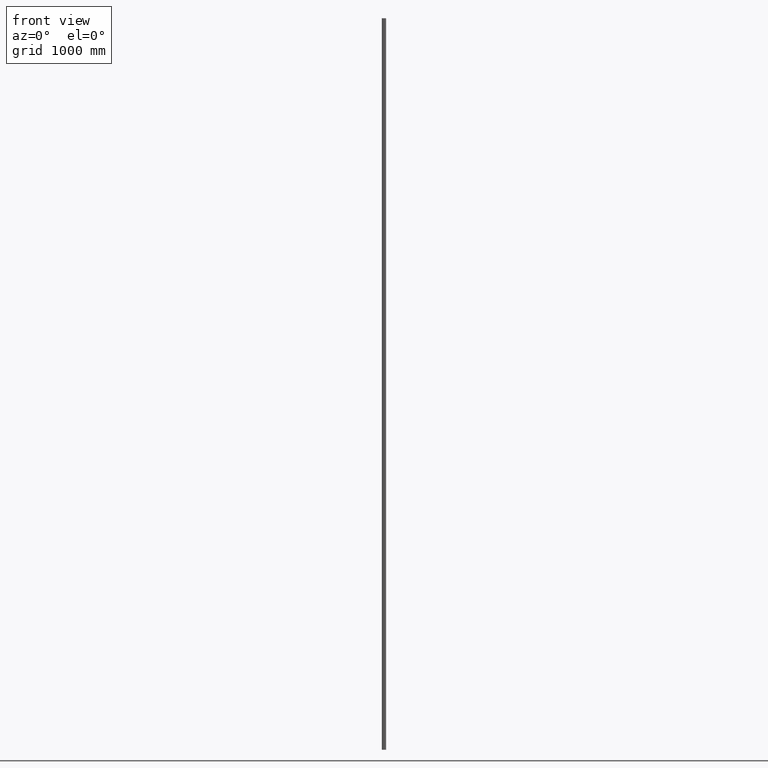
[diagram: clean part render]
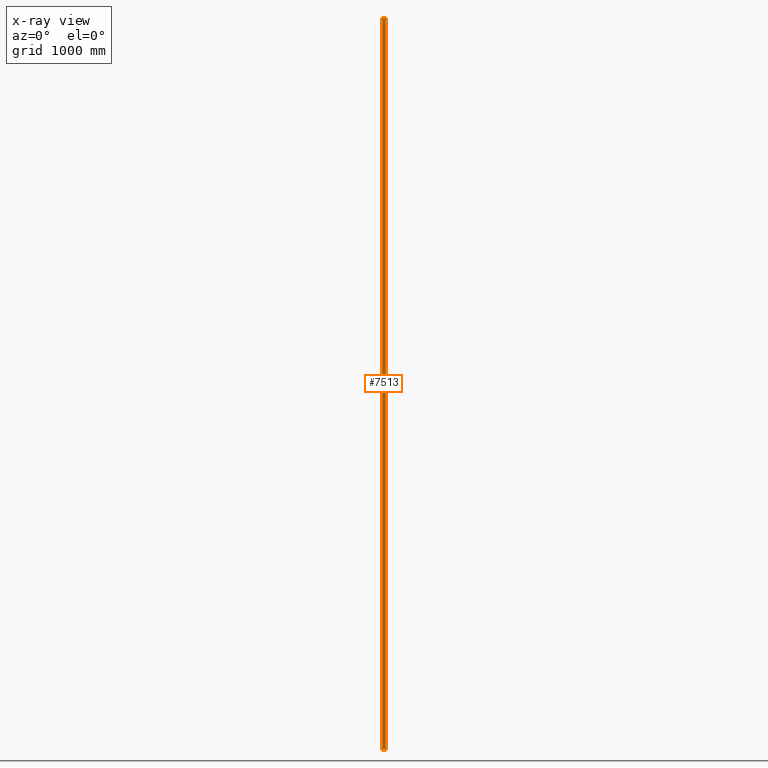
[diagram: x-ray — body ghosted, one internal face saturated and labeled with its STEP entity id]
A machine part, front view, then the same camera in x-ray: the body is ghosted and one INTERNAL B-rep face — a face not visible from any outside direction — is saturated and labeled: STEP entity #7513.
In plain terms, the highlighted planar face has unit normal (0, -1, 0).
Its self-contained STEP definition (entity closure, byte-faithful):
#134 = CARTESIAN_POINT ( 'NONE',  ( -1.790112549618517661E-18, 2.541098841762901017E-18, 3000.000000000000000 ) ) ;
#153 = ORIENTED_EDGE ( 'NONE', *, *, #13395, .F. ) ;
#647 = CARTESIAN_POINT ( 'NONE',  ( -13.50000000000000000, -1.650867214198631361E-15, 3000.000000000000000 ) ) ;
#1183 = DIRECTION ( 'NONE',  ( 0.000000000000000000, 0.000000000000000000, -1.000000000000000000 ) ) ;
#1334 = ORIENTED_EDGE ( 'NONE', *, *, #15143, .F. ) ;
#1625 = DIRECTION ( 'NONE',  ( 1.000000000000000000, 1.224746898548440121E-16, 0.000000000000000000 ) ) ;
#1874 = ORIENTED_EDGE ( 'NONE', *, *, #18423, .T. ) ;
#3812 = CARTESIAN_POINT ( 'NONE',  ( -13.50000000000000000, -1.650867214198631361E-15, -3000.000000000000000 ) ) ;
#4409 = VERTEX_POINT ( 'NONE', #8559 ) ;
#4747 = LINE ( 'NONE', #5593, #18245 ) ;
#4794 = VERTEX_POINT ( 'NONE', #3812 ) ;
#5593 = CARTESIAN_POINT ( 'NONE',  ( -1.790112549618517661E-18, 2.541098841762901017E-18, 3000.000000000000000 ) ) ;
#5597 = DIRECTION ( 'NONE',  ( -0.000000000000000000, -0.000000000000000000, -1.000000000000000000 ) ) ;
#5709 = CARTESIAN_POINT ( 'NONE',  ( 13.50000000000000000, -1.631533998662751370E-15, 3000.000000000000000 ) ) ;
#6484 = DIRECTION ( 'NONE',  ( -1.000000000000000000, -1.224746898548440121E-16, 0.000000000000000000 ) ) ;
#7513 = ADVANCED_FACE ( 'NONE', ( #9514 ), #12040, .F. ) ;
#7860 = ORIENTED_EDGE ( 'NONE', *, *, #17470, .T. ) ;
#8427 = VECTOR ( 'NONE', #1183, 1000.000000000000000 ) ;
#8542 = CARTESIAN_POINT ( 'NONE',  ( -13.50000000000000000, -1.650867214198631361E-15, 3000.000000000000000 ) ) ;
#8545 = AXIS2_PLACEMENT_3D ( 'NONE', #134, #13380, #1625 ) ;
#8559 = CARTESIAN_POINT ( 'NONE',  ( 13.50000000000000000, -1.631533998662751370E-15, 3000.000000000000000 ) ) ;
#8785 = DIRECTION ( 'NONE',  ( -1.000000000000000000, -1.224746898548440121E-16, 0.000000000000000000 ) ) ;
#8987 = VERTEX_POINT ( 'NONE', #647 ) ;
#9514 = FACE_OUTER_BOUND ( 'NONE', #16831, .T. ) ;
#10520 = LINE ( 'NONE', #16791, #15572 ) ;
#12040 = PLANE ( 'NONE',  #8545 ) ;
#12184 = VERTEX_POINT ( 'NONE', #17722 ) ;
#13380 = DIRECTION ( 'NONE',  ( 1.224746898548440121E-16, -1.000000000000000000, 0.000000000000000000 ) ) ;
#13395 = EDGE_CURVE ( 'NONE', #4409, #8987, #4747, .T. ) ;
#13462 = VECTOR ( 'NONE', #5597, 1000.000000000000000 ) ;
#15143 = EDGE_CURVE ( 'NONE', #8987, #4794, #15743, .T. ) ;
#15572 = VECTOR ( 'NONE', #6484, 1000.000000000000000 ) ;
#15743 = LINE ( 'NONE', #8542, #13462 ) ;
#16791 = CARTESIAN_POINT ( 'NONE',  ( -1.790112549618517661E-18, 2.541098841762901017E-18, -3000.000000000000000 ) ) ;
#16831 = EDGE_LOOP ( 'NONE', ( #7860, #1334, #153, #1874 ) ) ;
#17470 = EDGE_CURVE ( 'NONE', #12184, #4794, #10520, .T. ) ;
#17550 = LINE ( 'NONE', #5709, #8427 ) ;
#17722 = CARTESIAN_POINT ( 'NONE',  ( 13.50000000000000000, -1.631533998662751370E-15, -3000.000000000000000 ) ) ;
#18245 = VECTOR ( 'NONE', #8785, 1000.000000000000000 ) ;
#18423 = EDGE_CURVE ( 'NONE', #4409, #12184, #17550, .T. ) ;